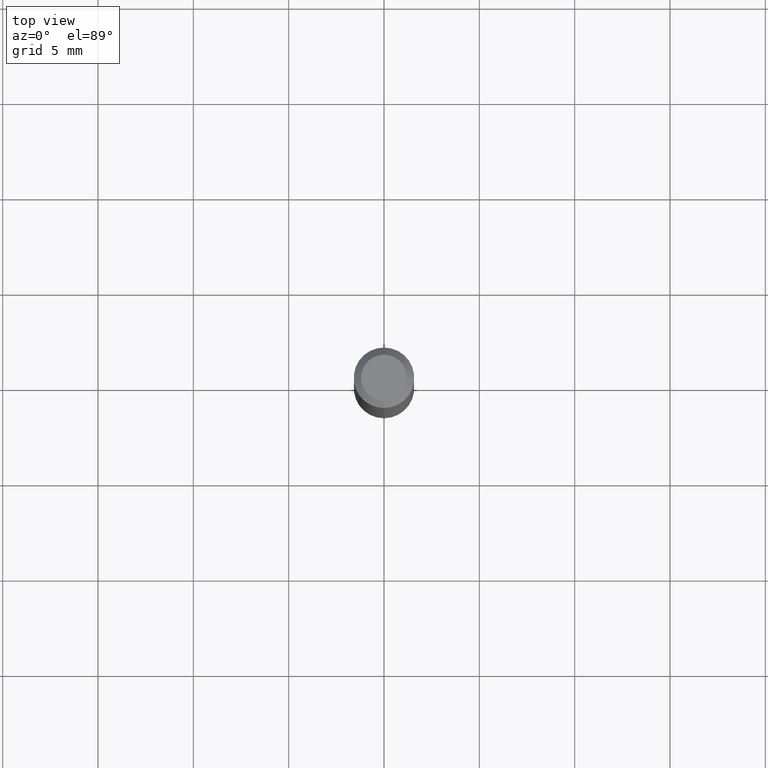
[diagram: clean part render]
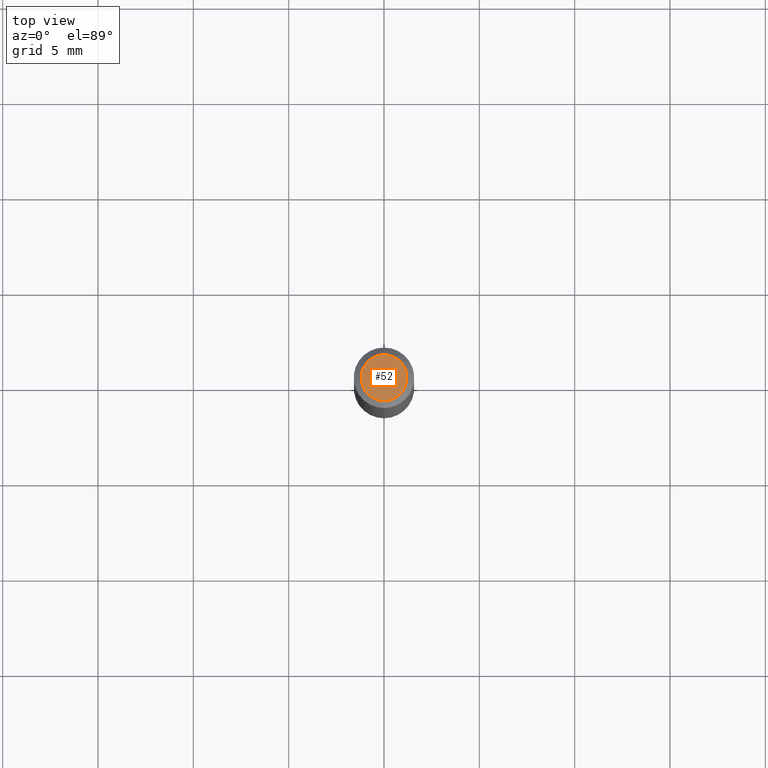
[diagram: same view with one face highlighted and labeled with its STEP entity id]
A machine part, top view. The second image highlights one B-rep face of the part: STEP entity #52.
In plain terms, the highlighted planar face has unit normal (0, -0, -1).
Its self-contained STEP definition (entity closure, byte-faithful):
#24 = CARTESIAN_POINT ( 'NONE',  ( 3.840629472727447874E-16, 0.04749999999999999362, -1.747056831868805136E-16 ) ) ;
#38 = CARTESIAN_POINT ( 'NONE',  ( 2.166820415418826865E-46, -3.093637057485499121E-32, -8.860540492357393280E-18 ) ) ;
#52 = ADVANCED_FACE ( 'NONE', ( #297 ), #74, .F. ) ;
#69 = DIRECTION ( 'NONE',  ( -6.982962677686266711E-15, -1.000000000000000000, 3.491476688305750311E-15 ) ) ;
#74 = PLANE ( 'NONE',  #386 ) ;
#82 = DIRECTION ( 'NONE',  ( -2.445472053638043115E-29, 3.491476688305749916E-15, 1.000000000000000000 ) ) ;
#84 = EDGE_CURVE ( 'NONE', #196, #181, #493, .T. ) ;
#156 = DIRECTION ( 'NONE',  ( -2.445472053638043115E-29, 3.491476688305749916E-15, 1.000000000000000000 ) ) ;
#181 = VERTEX_POINT ( 'NONE', #24 ) ;
#196 = VERTEX_POINT ( 'NONE', #469 ) ;
#198 = AXIS2_PLACEMENT_3D ( 'NONE', #38, #156, #321 ) ;
#221 = AXIS2_PLACEMENT_3D ( 'NONE', #267, #82, #69 ) ;
#267 = CARTESIAN_POINT ( 'NONE',  ( 2.166820415418826865E-46, -3.093637057485499121E-32, -8.860540492357393280E-18 ) ) ;
#288 = EDGE_CURVE ( 'NONE', #181, #196, #331, .T. ) ;
#297 = FACE_OUTER_BOUND ( 'NONE', #460, .T. ) ;
#321 = DIRECTION ( 'NONE',  ( -6.982962677686266711E-15, -1.000000000000000000, 3.491476688305750311E-15 ) ) ;
#331 = CIRCLE ( 'NONE', #221, 0.04749999999999999362 ) ;
#362 = CARTESIAN_POINT ( 'NONE',  ( 3.316907271900976096E-16, 0.04749999999999999362, -1.702754129407017947E-16 ) ) ;
#372 = DIRECTION ( 'NONE',  ( 6.982962677686265922E-15, 1.000000000000000000, -3.491476688305749916E-15 ) ) ;
#386 = AXIS2_PLACEMENT_3D ( 'NONE', #362, #508, #372 ) ;
#460 = EDGE_LOOP ( 'NONE', ( #484, #510 ) ) ;
#469 = CARTESIAN_POINT ( 'NONE',  ( -3.773273898774340269E-16, -0.04749999999999999362, 1.569846022021657363E-16 ) ) ;
#484 = ORIENTED_EDGE ( 'NONE', *, *, #288, .T. ) ;
#493 = CIRCLE ( 'NONE', #198, 0.04749999999999999362 ) ;
#508 = DIRECTION ( 'NONE',  ( 2.445472053638042835E-29, -3.491476688305749916E-15, -1.000000000000000000 ) ) ;
#510 = ORIENTED_EDGE ( 'NONE', *, *, #84, .T. ) ;